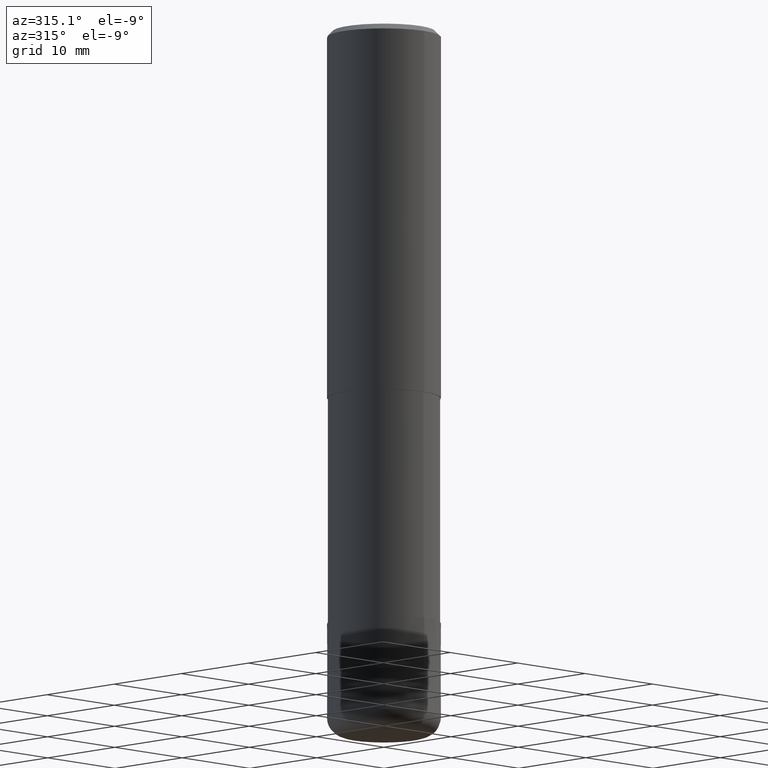
[diagram: clean part render]
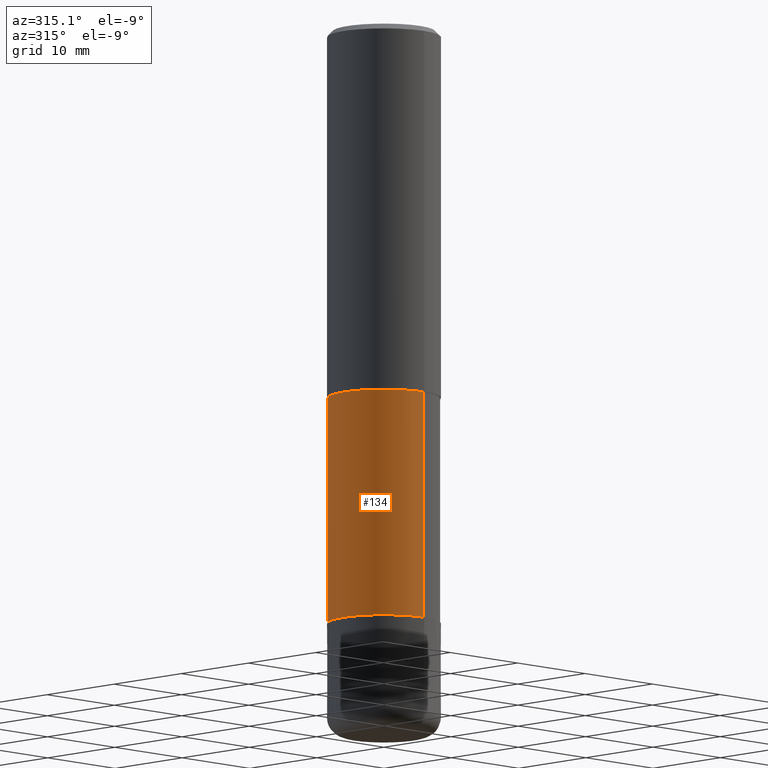
[diagram: same view with one face highlighted and labeled with its STEP entity id]
A machine part, auxiliary view. The second image highlights one B-rep face of the part: STEP entity #134.
In plain terms, the highlighted cylindrical surface (partial cylindrical patch) has radius 5.91 mm, axis along (-0, -0, 1).
Its self-contained STEP definition (entity closure, byte-faithful):
#102=VERTEX_POINT('',#241);
#108=EDGE_CURVE('',#156,#102,#248,.T.);
#132=VERTEX_POINT('',#275);
#134=ADVANCED_FACE('',(#277),#278,.T.);
#156=VERTEX_POINT('',#304);
#160=EDGE_CURVE('',#156,#132,#308,.T.);
#164=EDGE_CURVE('',#132,#186,#312,.T.);
#186=VERTEX_POINT('',#338);
#206=EDGE_CURVE('',#186,#102,#359,.T.);
#241=CARTESIAN_POINT('',(0.0,5.90995,-63.0));
#248=CIRCLE('',#397,5.90995);
#275=CARTESIAN_POINT('',(7.23736232077256E-016,-5.90995,-39.0));
#277=FACE_OUTER_BOUND('',#432,.T.);
#278=CYLINDRICAL_SURFACE('',#433,5.90995);
#304=CARTESIAN_POINT('',(7.23736232077256E-016,-5.90995,-63.0));
#308=LINE('',#471,#472);
#312=CIRCLE('',#479,5.90995);
#338=CARTESIAN_POINT('',(0.0,5.90995,-39.0));
#359=LINE('',#534,#535);
#397=AXIS2_PLACEMENT_3D('',#569,#570,#571);
#432=EDGE_LOOP('',(#601,#602,#603,#604));
#433=AXIS2_PLACEMENT_3D('',#605,#606,#607);
#471=CARTESIAN_POINT('',(7.23736232077256E-016,-5.90995,-51.0));
#472=VECTOR('',#649,1.0);
#479=AXIS2_PLACEMENT_3D('',#651,#652,#653);
#534=CARTESIAN_POINT('',(-7.23736232077256E-016,5.90995,-51.0));
#535=VECTOR('',#712,1.0);
#569=CARTESIAN_POINT('',(0.0,0.0,-63.0));
#570=DIRECTION('',(0.0,0.0,-1.0));
#571=DIRECTION('',(0.0,1.0,0.0));
#601=ORIENTED_EDGE('',*,*,#206,.T.);
#602=ORIENTED_EDGE('',*,*,#108,.F.);
#603=ORIENTED_EDGE('',*,*,#160,.T.);
#604=ORIENTED_EDGE('',*,*,#164,.T.);
#605=CARTESIAN_POINT('',(0.0,0.0,-51.0));
#606=DIRECTION('',(-0.0,-0.0,1.0));
#607=DIRECTION('',(0.0,1.0,0.0));
#649=DIRECTION('',(-0.0,-0.0,1.0));
#651=CARTESIAN_POINT('',(0.0,0.0,-39.0));
#652=DIRECTION('',(0.0,0.0,-1.0));
#653=DIRECTION('',(0.0,1.0,0.0));
#712=DIRECTION('',(0.0,0.0,-1.0));